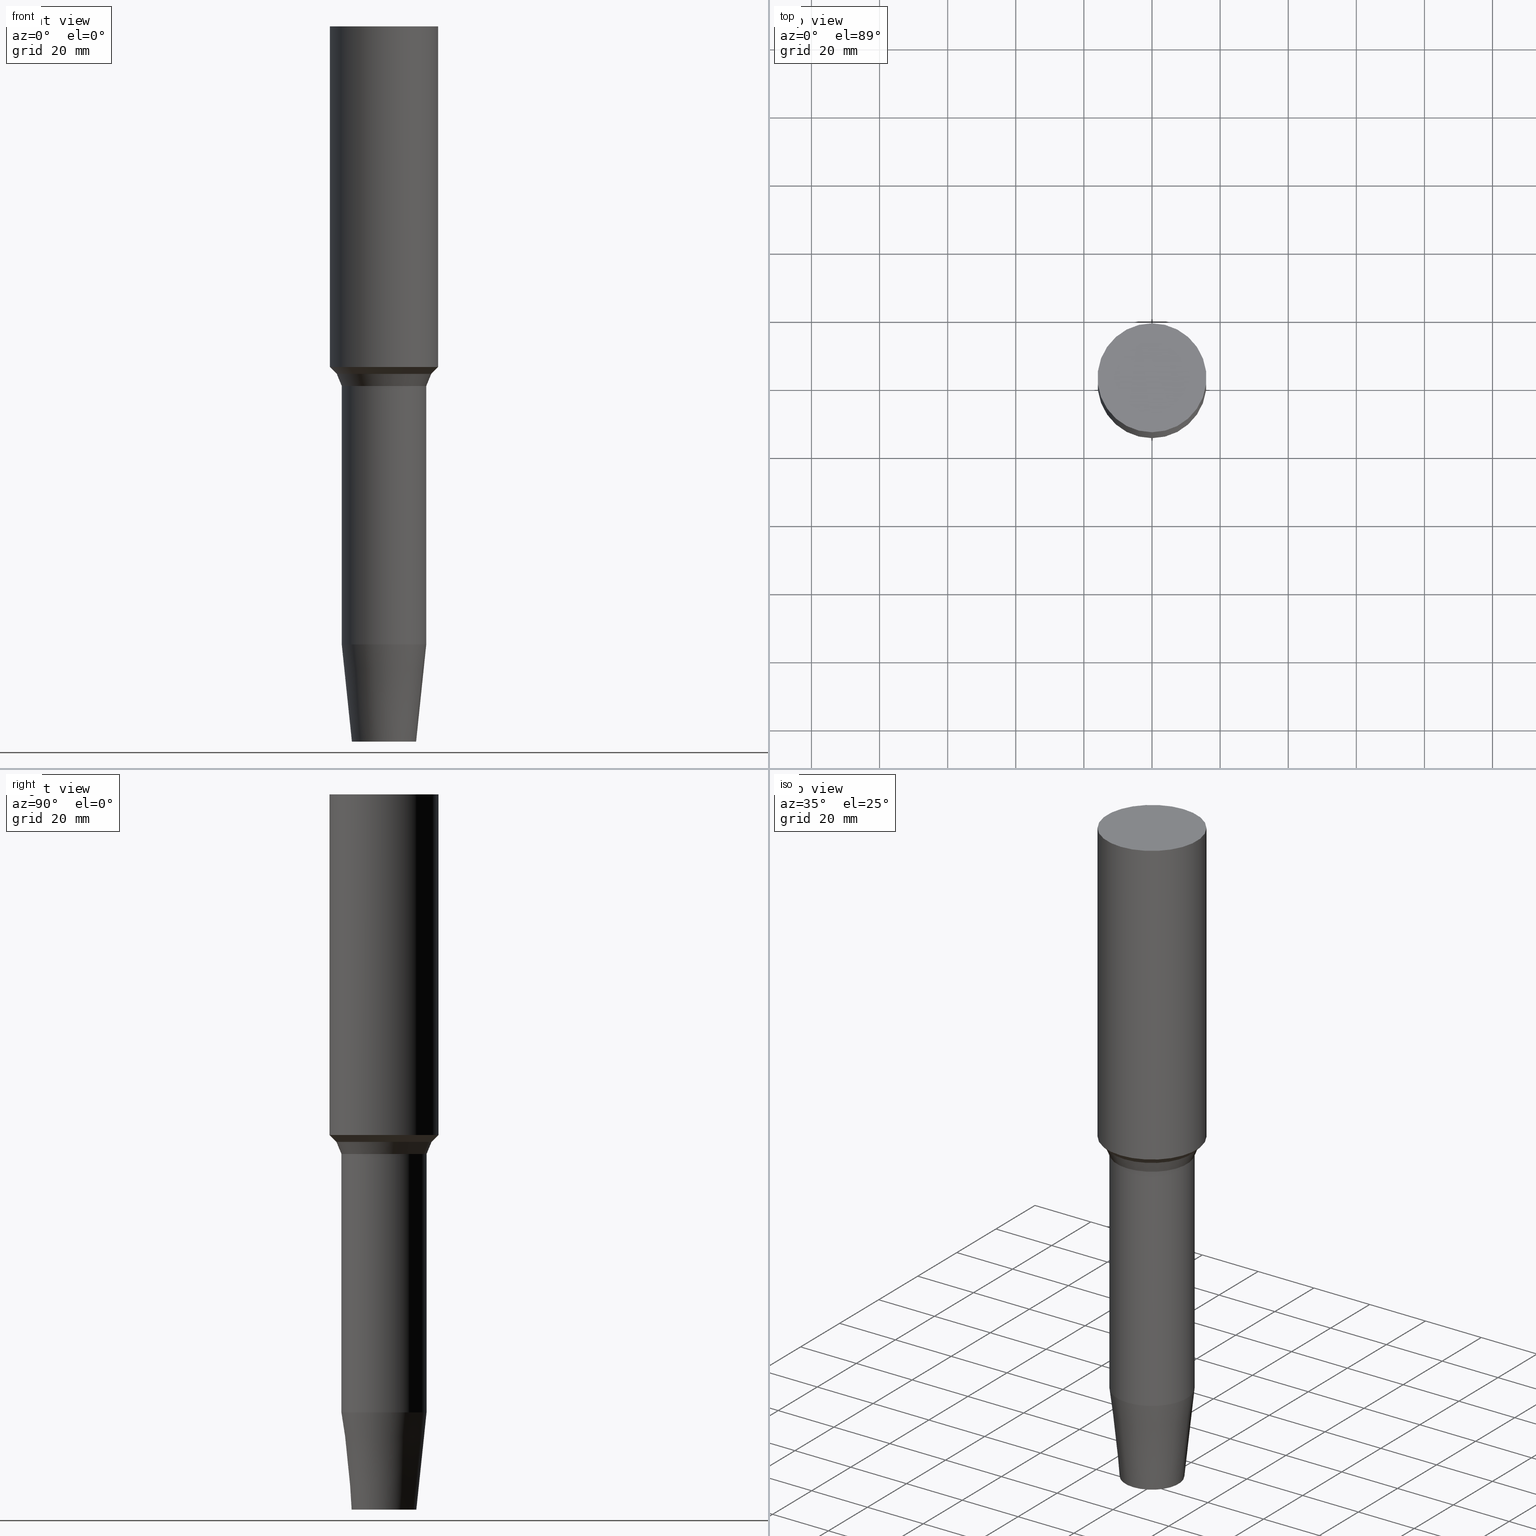
[diagram: canonical four-view strip — front | top / right | iso, engineering-drawing reading convention]
A machine part, canonical four-view strip (front | top / right | iso — engineering-drawing reading convention). The complete STEP part file that produces these views, byte-faithful:
ISO-10303-21;
HEADER;
FILE_DESCRIPTION((''),'1');
FILE_NAME('W:/Translate/00_BIG-HP\X2\FF71FF6FFF8CFF9F\X0\2013/\X2\30C030A630F330ED30FC30C930C730FC30BF\X0\/Vol9\X2\4EE5964D63B28F094E885B9A\X0\/20140611\X2\6DE18DEF628088533088308A\X0\/ST-HDC_S/ST32-HDC10S-210.stp','2014-06-12T05:12:14',(''),(''),'Spatial Interop R18','Kubotek KeyCreator V8.5.1 (14335)',' ');
FILE_SCHEMA(('CONFIG_CONTROL_DESIGN'));
ENDSEC;
DATA;
#1=DESIGN_CONTEXT('',#27,'design');
#2=APPLICATION_PROTOCOL_DEFINITION('INTERNATIONAL STANDARD','config_control_design',1994,#27);
#3=PRODUCT_CATEGORY_RELATIONSHIP('NONE','NONE',#28,#29);
#4=DATE_AND_TIME(#30,#31);
#5=DATE_TIME_ROLE('creation_date');
#6=DATE_TIME_ROLE('classification_date');
#7=PERSON_AND_ORGANIZATION_ROLE('creator');
#8=PERSON_AND_ORGANIZATION_ROLE('design_supplier');
#9=PERSON_AND_ORGANIZATION_ROLE('classification_officer');
#10=PERSON_AND_ORGANIZATION_ROLE('design_owner');
#11=APPROVAL_PERSON_ORGANIZATION(#32,#33,#34);
#12=APPROVAL_DATE_TIME(#4,#33);
#13=CC_DESIGN_APPROVAL(#33,(#35,#36,#37));
#14=CC_DESIGN_DATE_AND_TIME_ASSIGNMENT(#4,#5,(#37));
#15=CC_DESIGN_DATE_AND_TIME_ASSIGNMENT(#4,#6,(#35));
#16=CC_DESIGN_PERSON_AND_ORGANIZATION_ASSIGNMENT(#32,#10,(#38));
#17=CC_DESIGN_PERSON_AND_ORGANIZATION_ASSIGNMENT(#32,#7,(#37));
#18=CC_DESIGN_PERSON_AND_ORGANIZATION_ASSIGNMENT(#32,#7,(#36));
#19=CC_DESIGN_PERSON_AND_ORGANIZATION_ASSIGNMENT(#32,#8,(#36));
#20=CC_DESIGN_SECURITY_CLASSIFICATION(#35,(#36));
#21=CC_DESIGN_PERSON_AND_ORGANIZATION_ASSIGNMENT(#32,#9,(#35));
#22=SHAPE_DEFINITION_REPRESENTATION(#39,#40);
#23= (GEOMETRIC_REPRESENTATION_CONTEXT(3)GLOBAL_UNCERTAINTY_ASSIGNED_CONTEXT((#43))GLOBAL_UNIT_ASSIGNED_CONTEXT((#45,#46,#47))REPRESENTATION_CONTEXT('NONE','WORKSPACE'));
#27=APPLICATION_CONTEXT('CONFIGURATION CONTROLLED 3D DESIGNS OF MECHANICAL PARTS AND ASSEMBLIES');
#28=PRODUCT_CATEGORY('part','NONE');
#29=PRODUCT_RELATED_PRODUCT_CATEGORY('detail',' ',(#38));
#30=CALENDAR_DATE(2014,12,5);
#31=LOCAL_TIME(14,12,14.0,#49);
#32=PERSON_AND_ORGANIZATION(#50,#51);
#33=APPROVAL(#52,'SOLID MODEL');
#34=APPROVAL_ROLE('APPROVED');
#35=SECURITY_CLASSIFICATION('','',#53);
#36=PRODUCT_DEFINITION_FORMATION_WITH_SPECIFIED_SOURCE(' ','NONE',#38,.NOT_KNOWN.);
#37=PRODUCT_DEFINITION('NONE','NONE',#36,#1);
#38=PRODUCT('1','1','PART-1-DESC',(#54));
#39=PRODUCT_DEFINITION_SHAPE('NONE','NONE',#37);
#40=ADVANCED_BREP_SHAPE_REPRESENTATION('1',(#55,#56),#23);
#43=UNCERTAINTY_MEASURE_WITH_UNIT(LENGTH_MEASURE(1.0E-006),#45,'','');
#45= (CONVERSION_BASED_UNIT('MILLIMETRE',#59)LENGTH_UNIT()NAMED_UNIT(#62));
#46= (NAMED_UNIT(#64)PLANE_ANGLE_UNIT()SI_UNIT($,.RADIAN.));
#47= (NAMED_UNIT(#64)SOLID_ANGLE_UNIT()SI_UNIT($,.STERADIAN.));
#49=COORDINATED_UNIVERSAL_TIME_OFFSET(9,0,.AHEAD.);
#50=PERSON('','UNSPECIFIED',$,$,$,$);
#51=ORGANIZATION('UNSPECIFIED','UNSPECIFIED','UNSPECIFIED');
#52=APPROVAL_STATUS('approved');
#53=SECURITY_CLASSIFICATION_LEVEL('unclassified');
#54=MECHANICAL_CONTEXT('',#27,'mechanical');
#55=MANIFOLD_SOLID_BREP('1',#70);
#56=AXIS2_PLACEMENT_3D('',#71,#72,#73);
#59=LENGTH_MEASURE_WITH_UNIT(LENGTH_MEASURE(1.0),#74);
#62=DIMENSIONAL_EXPONENTS(1.0,0.0,0.0,0.0,0.0,0.0,0.0);
#64=DIMENSIONAL_EXPONENTS(0.0,0.0,0.0,0.0,0.0,0.0,0.0);
#70=CLOSED_SHELL('',(#75,#76,#77,#78,#79,#80,#81));
#71=CARTESIAN_POINT('',(0.0,0.0,0.0));
#72=DIRECTION('',(0.0,0.0,1.0));
#73=DIRECTION('',(1.0,0.0,0.0));
#74= (NAMED_UNIT(#62)LENGTH_UNIT()SI_UNIT(.MILLI.,.METRE.));
#75=ADVANCED_FACE('',(#83),#84,.T.);
#76=ADVANCED_FACE('',(#85,#86),#87,.T.);
#77=ADVANCED_FACE('',(#88,#89),#90,.T.);
#78=ADVANCED_FACE('',(#91,#92),#93,.T.);
#79=ADVANCED_FACE('',(#94,#95),#96,.T.);
#80=ADVANCED_FACE('',(#97,#98),#99,.T.);
#81=ADVANCED_FACE('',(#100),#101,.T.);
#83=FACE_OUTER_BOUND('',#102,.T.);
#84=PLANE('',#103);
#85=FACE_BOUND('',#104,.T.);
#86=FACE_BOUND('',#105,.T.);
#87=CYLINDRICAL_SURFACE('',#106,16.0000000004299);
#88=FACE_BOUND('',#107,.T.);
#89=FACE_BOUND('',#108,.T.);
#90=CONICAL_SURFACE('',#109,14.9822330472484,0.785398163397396);
#91=FACE_BOUND('',#110,.T.);
#92=FACE_BOUND('',#111,.T.);
#93=CONICAL_SURFACE('',#112,13.2322330470337,0.392699081698582);
#94=FACE_BOUND('',#113,.T.);
#95=FACE_BOUND('',#114,.T.);
#96=CYLINDRICAL_SURFACE('',#115,12.5000000000004);
#97=FACE_BOUND('',#116,.T.);
#98=FACE_BOUND('',#117,.T.);
#99=CONICAL_SURFACE('',#118,11.0000000000028,0.104719755119513);
#100=FACE_OUTER_BOUND('',#119,.T.);
#101=PLANE('',#120);
#102=EDGE_LOOP('',(#121));
#103=AXIS2_PLACEMENT_3D('',#122,#123,#124);
#104=EDGE_LOOP('',(#125));
#105=EDGE_LOOP('',(#126));
#106=AXIS2_PLACEMENT_3D('',#127,#128,#129);
#107=EDGE_LOOP('',(#130));
#108=EDGE_LOOP('',(#131));
#109=AXIS2_PLACEMENT_3D('',#132,#133,#134);
#110=EDGE_LOOP('',(#135));
#111=EDGE_LOOP('',(#136));
#112=AXIS2_PLACEMENT_3D('',#137,#138,#139);
#113=EDGE_LOOP('',(#140));
#114=EDGE_LOOP('',(#141));
#115=AXIS2_PLACEMENT_3D('',#142,#143,#144);
#116=EDGE_LOOP('',(#145));
#117=EDGE_LOOP('',(#146));
#118=AXIS2_PLACEMENT_3D('',#147,#148,#149);
#119=EDGE_LOOP('',(#150));
#120=AXIS2_PLACEMENT_3D('',#151,#152,#153);
#121=ORIENTED_EDGE('',*,*,#154,.F.);
#122=CARTESIAN_POINT('',(-1.28587913910474E-014,8.00000000021494,210.000000000003));
#123=DIRECTION('',(-6.12323399573677E-017,-2.31697619765428E-014,1.0));
#124=DIRECTION('',(1.42356589480973E-030,-1.0,-2.31697619765428E-014));
#125=ORIENTED_EDGE('',*,*,#155,.F.);
#126=ORIENTED_EDGE('',*,*,#154,.T.);
#127=CARTESIAN_POINT('',(-9.79717439319221E-015,2.32735757419765E-014,160.000000000219));
#128=DIRECTION('',(-6.12323399573676E-017,1.45459848387155E-016,1.0));
#129=DIRECTION('',(4.07969415582038E-033,1.0,-1.45459848387155E-016));
#130=ORIENTED_EDGE('',*,*,#156,.F.);
#131=ORIENTED_EDGE('',*,*,#155,.T.);
#132=CARTESIAN_POINT('',(-6.67323714326243E-015,1.58525390959469E-014,108.982233047252));
#133=DIRECTION('',(-6.12323399573677E-017,1.45459848387155E-016,1.0));
#134=DIRECTION('',(4.07969415582038E-033,1.0,-1.45459848387155E-016));
#135=ORIENTED_EDGE('',*,*,#157,.F.);
#136=ORIENTED_EDGE('',*,*,#156,.T.);
#137=CARTESIAN_POINT('',(-6.50267238415841E-015,1.54473557562813E-014,106.196699141105));
#138=DIRECTION('',(-6.12323399573677E-017,1.45459848387155E-016,1.0));
#139=DIRECTION('',(4.07969415582038E-033,1.0,-1.45459848387155E-016));
#140=ORIENTED_EDGE('',*,*,#158,.F.);
#141=ORIENTED_EDGE('',*,*,#157,.T.);
#142=CARTESIAN_POINT('',(-4.07109413667326E-015,9.67104533817627E-015,66.4860127754013));
#143=DIRECTION('',(-6.12323399573676E-017,1.45459848387155E-016,1.0));
#144=DIRECTION('',(4.07969415582038E-033,1.0,-1.45459848387155E-016));
#145=ORIENTED_EDGE('',*,*,#159,.F.);
#146=ORIENTED_EDGE('',*,*,#158,.T.);
#147=CARTESIAN_POINT('',(-8.73880198108771E-016,2.07593701651677E-015,14.2715466813322));
#148=DIRECTION('',(-6.12323399573677E-017,1.45459848387155E-016,1.0));
#149=DIRECTION('',(4.07969415582038E-033,1.0,-1.45459848387155E-016));
#150=ORIENTED_EDGE('',*,*,#159,.T.);
#151=CARTESIAN_POINT('',(-1.4041724112934E-028,4.75000000000253,2.30215846386272E-012));
#152=DIRECTION('',(6.12323399573677E-017,-4.84542475080401E-013,-1.0));
#153=DIRECTION('',(2.96648424051767E-029,1.0,-4.84542475080401E-013));
#154=EDGE_CURVE('',#160,#160,#161,.T.);
#155=EDGE_CURVE('',#162,#162,#163,.T.);
#156=EDGE_CURVE('',#164,#164,#165,.T.);
#157=EDGE_CURVE('',#166,#166,#167,.T.);
#158=EDGE_CURVE('',#168,#168,#169,.T.);
#159=EDGE_CURVE('',#170,#170,#171,.T.);
#160=VERTEX_POINT('',#172);
#161=CIRCLE('',#173,16.0000000004298);
#162=VERTEX_POINT('',#174);
#163=CIRCLE('',#175,16.0000000004299);
#164=VERTEX_POINT('',#176);
#165=CIRCLE('',#177,13.964466094067);
#166=VERTEX_POINT('',#178);
#167=CIRCLE('',#179,12.5000000000004);
#168=VERTEX_POINT('',#180);
#169=CIRCLE('',#181,12.5000000000004);
#170=VERTEX_POINT('',#182);
#171=CIRCLE('',#183,9.50000000000506);
#172=CARTESIAN_POINT('',(-1.28587913910474E-014,16.0000000004299,210.000000000003));
#173=AXIS2_PLACEMENT_3D('',#184,#185,#186);
#174=CARTESIAN_POINT('',(-6.73555739533701E-015,16.0000000004299,110.000000000434));
#175=AXIS2_PLACEMENT_3D('',#187,#188,#189);
#176=CARTESIAN_POINT('',(-6.61091689118784E-015,13.964466094067,107.964466094071));
#177=AXIS2_PLACEMENT_3D('',#190,#191,#192);
#178=CARTESIAN_POINT('',(-6.39442787712898E-015,12.5000000000004,104.428932188138));
#179=AXIS2_PLACEMENT_3D('',#193,#194,#195);
#180=CARTESIAN_POINT('',(-1.74776039621754E-015,12.5000000000005,28.5430933626643));
#181=AXIS2_PLACEMENT_3D('',#196,#197,#198);
#182=CARTESIAN_POINT('',(0.0,9.50000000000506,0.0));
#183=AXIS2_PLACEMENT_3D('',#199,#200,#201);
#184=CARTESIAN_POINT('',(-1.28587913910474E-014,3.05465681613029E-014,210.000000000003));
#185=DIRECTION('',(6.12323399573677E-017,-1.45459848387155E-016,-1.0));
#186=DIRECTION('',(4.07969415582038E-033,1.0,-1.45459848387155E-016));
#187=CARTESIAN_POINT('',(-6.73555739533701E-015,1.60005833226501E-014,110.000000000434));
#188=DIRECTION('',(6.12323399573677E-017,-1.45459848387155E-016,-1.0));
#189=DIRECTION('',(4.07969415582038E-033,1.0,-1.45459848387155E-016));
#190=CARTESIAN_POINT('',(-6.61091689118784E-015,1.57044948692436E-014,107.964466094071));
#191=DIRECTION('',(6.12323399573677E-017,-1.45459848387154E-016,-1.0));
#192=DIRECTION('',(4.07969415582038E-033,1.0,-1.45459848387154E-016));
#193=CARTESIAN_POINT('',(-6.39442787712898E-015,1.5190216643319E-014,104.428932188138));
#194=DIRECTION('',(6.12323399573677E-017,-1.45459848387155E-016,-1.0));
#195=DIRECTION('',(4.07969415582038E-033,1.0,-1.45459848387155E-016));
#196=CARTESIAN_POINT('',(-1.74776039621754E-015,4.15187403303355E-015,28.5430933626643));
#197=DIRECTION('',(6.12323399573677E-017,-1.45459848387155E-016,-1.0));
#198=DIRECTION('',(4.07969415582038E-033,1.0,-1.45459848387155E-016));
#199=CARTESIAN_POINT('',(0.0,0.0,0.0));
#200=DIRECTION('',(6.12323399573677E-017,-1.45459848387155E-016,-1.0));
#201=DIRECTION('',(4.07969415582038E-033,1.0,-1.45459848387155E-016));
ENDSEC;
END-ISO-10303-21;
